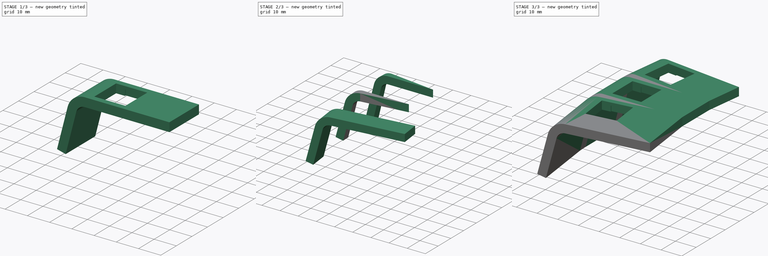
[diagram: build sequence overview — one tinted view per stage of 3, left to right]
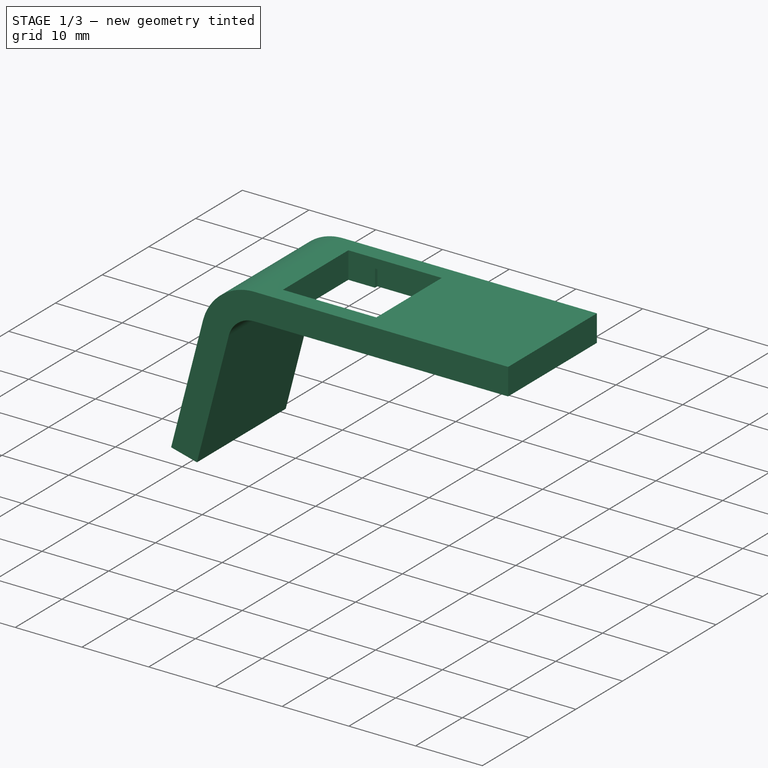
[diagram: stage 1 of 3 — iso view after this stage's code; geometry added in this stage tinted green]
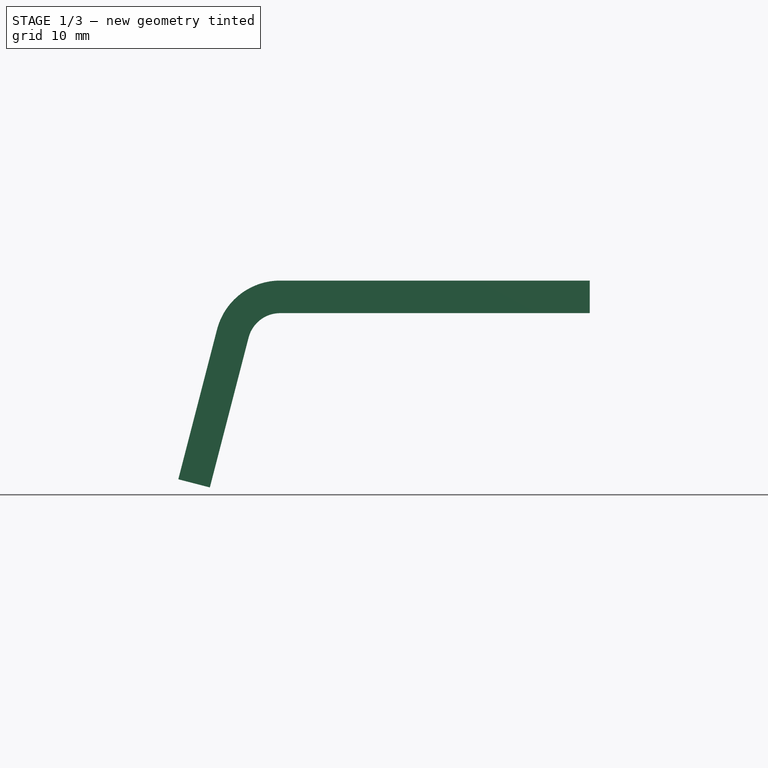
[diagram: stage 1 of 3 — front view after this stage's code; geometry added in this stage tinted green]
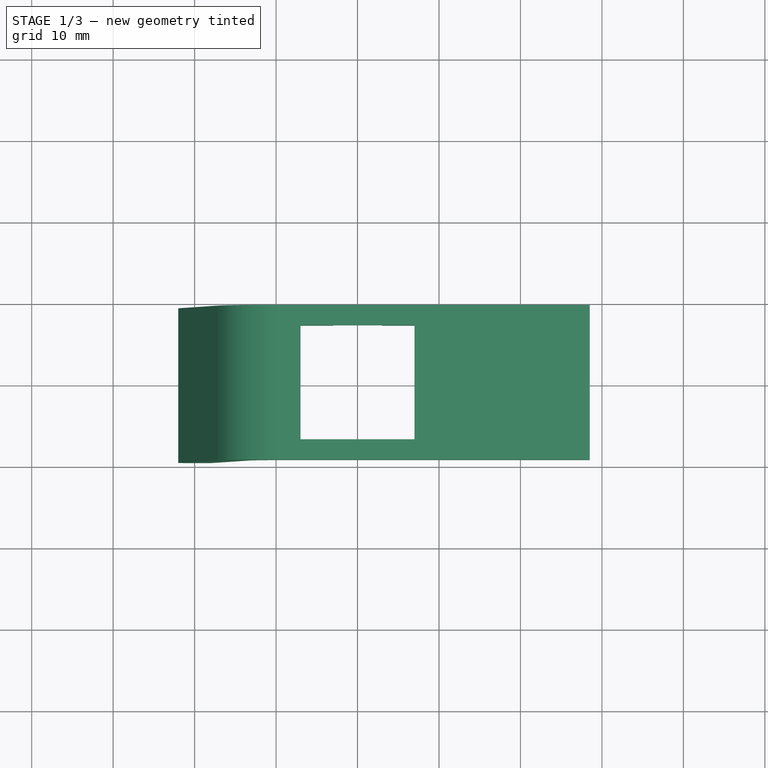
[diagram: stage 1 of 3 — top view after this stage's code; geometry added in this stage tinted green]
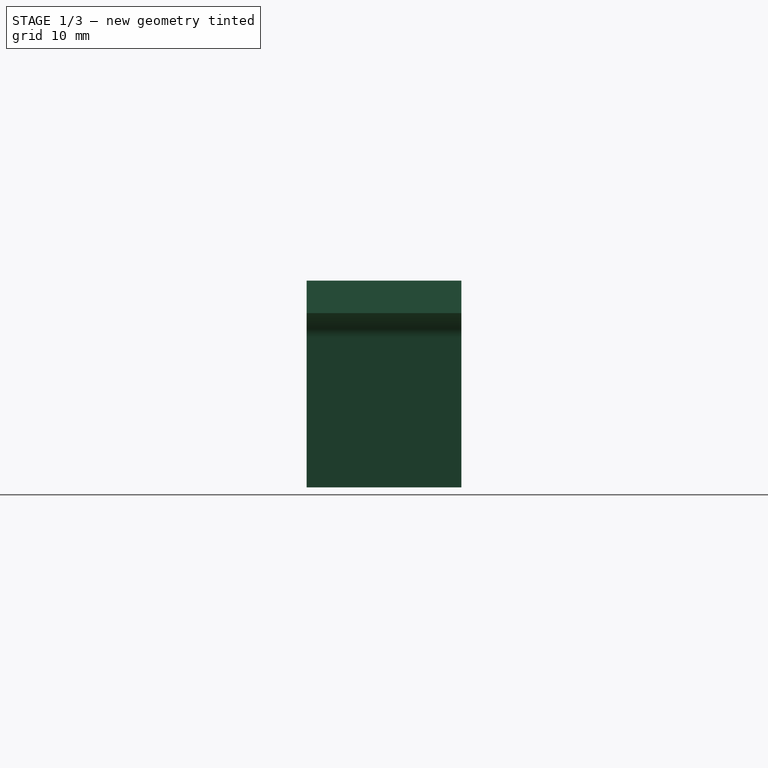
[diagram: stage 1 of 3 — right view after this stage's code; geometry added in this stage tinted green]
FCSTD DOCUMENT  (FreeCAD 0.21R33668 +26 (Git))
Label: KeyRowThumb2
License: All rights reserved
LicenseURL: http://en.wikipedia.org/wiki/All_rights_reserved
objects: Sketcher::SketchObject×5, PartDesign::Body×4, App::Link×4, PartDesign::Pad×2, Part::MultiFuse×2, PartDesign::AdditiveLoft×2, Part::Cut×1, PartDesign::SubShapeBinder×1, Part::Refine×1
note: 22 computed .brp shape members not serialized (recipe doc carries the construction recipe); baked Part::Feature solids carry a one-line shape summary decoded from their .brp
EXTERNAL_REF file=../components/MX-Latch-Subtractor2.FCStd obj=Body001

FEATURE [Sketcher::SketchObject] Sketch
  FullyConstrained = false
  MapMode = 5
  Placement = pos=(0,0,0) rot=(1,0,0;1.5708rad)
  Support = -> [XZ_Plane]
  sketch-geometry (15):
    g0: LineSegment StartX=-9.5 StartY=2 StartZ=0 EndX=9.5 EndY=2 EndZ=0
    g1: LineSegment StartX=9.5 StartY=2 StartZ=0 EndX=9.5 EndY=-2 EndZ=0
    g2: LineSegment StartX=9.5 StartY=-2 StartZ=0 EndX=-9.5 EndY=-2 EndZ=0
    g3: LineSegment StartX=-9.5 StartY=-2 StartZ=0 EndX=-9.5 EndY=2 EndZ=0
    g4: LineSegment StartX=-17.2452 StartY=-3.99696 StartZ=0 EndX=-13.3726 EndY=-4.99848 EndZ=0
    g5: LineSegment StartX=-9.5 StartY=-2 StartZ=0 EndX=-9.5 EndY=-6 EndZ=0
    g6: LineSegment StartX=-17.2452 StartY=-3.99696 StartZ=0 EndX=-22.0024 EndY=-22.3918 EndZ=0
    g7: LineSegment StartX=-22.0024 StartY=-22.3918 StartZ=0 EndX=-18.1298 EndY=-23.3933 EndZ=0
    g8: LineSegment StartX=-18.1298 StartY=-23.3933 StartZ=0 EndX=-13.3726 EndY=-4.99848 EndZ=0
    g9: LineSegment StartX=9.5 StartY=2 StartZ=0 EndX=28.5 EndY=2 EndZ=0
    g10: LineSegment StartX=28.5 StartY=2 StartZ=0 EndX=28.5 EndY=-2 EndZ=0
    g11: LineSegment StartX=28.5 StartY=-2 StartZ=0 EndX=9.5 EndY=-2 EndZ=0
    g12: LineSegment StartX=9.5 StartY=-21 StartZ=0 EndX=9.5 EndY=-2 EndZ=0
    g13: ArcOfCircle CenterX=-9.5 CenterY=-6 CenterZ=0 NormalX=0 NormalY=0 NormalZ=1 AngleXU=0 Radius=4 StartAngle=1.5708 EndAngle=2.88852
    g14: ArcOfCircle CenterX=-9.5 CenterY=-6 CenterZ=0 NormalX=0 NormalY=0 NormalZ=1 AngleXU=0 Radius=8 StartAngle=1.5708 EndAngle=2.88852
  constraints (36):
    c: Coincident(g1,g2)
    c: Coincident(g2,g3)
    c: Coincident(g3,g0)
    c: Horizontal(g0)
    c: Horizontal(g2)
    c: Vertical(g1)
    c: Symmetric(g0,g1,g-1)
    c: DistanceX(g0,g0) = 19
    c: DistanceY(g1,g1) = 4
    c: Distance(g4) = 4
    c: Coincident(g5,g2)
    c: Coincident(g4,g6) = -1.5708
    c: Coincident(g6,g7)
    c: Coincident(g7,g8)
    c: Distance(g5) = 4
    c: Coincident(g10,g9)
    c: Coincident(g11,g10)
    c: Perpendicular(g11,g10)
    c: Perpendicular(g9,g10)
    c: Distance(g10) = 4
    c: Distance(g9) = 19
    c: Coincident(g12,g2)
    c: Vertical(g12)
    c: Distance(g12) = 19
    c: Perpendicular(g7,g8)
    c: Perpendicular(g6,g7)
    c: Distance(g8) = 19
    c: Angle(g8,g2) = 1.82387
    c: Coincident(g0,g9)
    c: Coincident(g11,g2)
    c: Vertical(g1,g0)
    c: Coincident(g14,g13)
    c: Tangent(g13,g8) = 1.5708
    c: Tangent(g14,g6) = -1.5708
    c: Tangent(g14,g0) = 1.5708
    c: Tangent(g13,g2) = -1.5708
FEATURE [PartDesign::Pad] Pad
  Direction = (0,-1,-2e-16)
  Length = 19
  Length2 = 10
  Midplane = true
  Placement = pos=(0,0,0) rot=(1,0,0;1.5708rad)
  Profile = -> Sketch
  ReferenceAxis = -> Sketch [N_Axis]
  Type = 0
FEATURE [PartDesign::Body] Body
  Group = -> [Sketch,Pad]
  Origin = -> Origin
  Tip = -> Pad
FEATURE [App::Link] Link  label="MX-Latch-SubtractorNice"
  LinkPlacement = pos=(0,0,2) rot=(0,0,1;0rad)
  LinkedObject = -> <external ../components/MX-Latch-Subtractor2.FCStd>#Body001
  Placement = pos=(0,0,2) rot=(0,0,1;0rad)
FEATURE [Part::Cut] Cut  label="KeyRowThumbBase"
  Base = -> Body
  Refine = true
  Tool = -> Link
FEATURE [Part::Refine] Fusion002  label="ThumbCluster2Nice"
  Source = -> Fusion001

RESOLVED EXTERNAL PARTS (link-assembly join: the EXTERNAL_REF files above that resolve inside this repo's crawl, each included once):
---- part ../components/MX-Latch-Subtractor2.FCStd = doc fcstd_7b445c9ccc9a ----
FCSTD DOCUMENT  (FreeCAD 0.21R33668 +26 (Git))
Label: MX-Latch-Subtractor2
License: All rights reserved
LicenseURL: http://en.wikipedia.org/wiki/All_rights_reserved
objects: Sketcher::SketchObject×2, PartDesign::Pad×2, App::DocumentObjectGroup×2, PartDesign::Body×1, Part::Refine×1
note: 8 computed .brp shape members not serialized (recipe doc carries the construction recipe); baked Part::Feature solids carry a one-line shape summary decoded from their .brp

FEATURE [Sketcher::SketchObject] Sketch
  FullyConstrained = true
  MapMode = 5
  Support = -> [XY_Plane]
  sketch-geometry (4):
    g0: LineSegment StartX=-7 StartY=7 StartZ=0 EndX=7 EndY=7 EndZ=0
    g1: LineSegment StartX=7 StartY=7 StartZ=0 EndX=7 EndY=-7 EndZ=0
    g2: LineSegment StartX=7 StartY=-7 StartZ=0 EndX=-7 EndY=-7 EndZ=0
    g3: LineSegment StartX=-7 StartY=-7 StartZ=0 EndX=-7 EndY=7 EndZ=0
  constraints (11):
    c: Coincident(g0,g1)
    c: Coincident(g1,g2)
    c: Coincident(g2,g3)
    c: Coincident(g3,g0)
    c: Horizontal(g0)
    c: Horizontal(g2)
    c: Vertical(g1)
    c: Vertical(g3)
    c: Symmetric(g0,g1,g-1)
    c: Equal(g3,g0)
    c: DistanceX(g0,g0) = 14
FEATURE [PartDesign::Pad] Pad
  Direction = (0,0,1)
  Length = 10
  Length2 = 10
  Profile = -> Sketch
  ReferenceAxis = -> Sketch [N_Axis]
  Reversed = true
  Type = 0
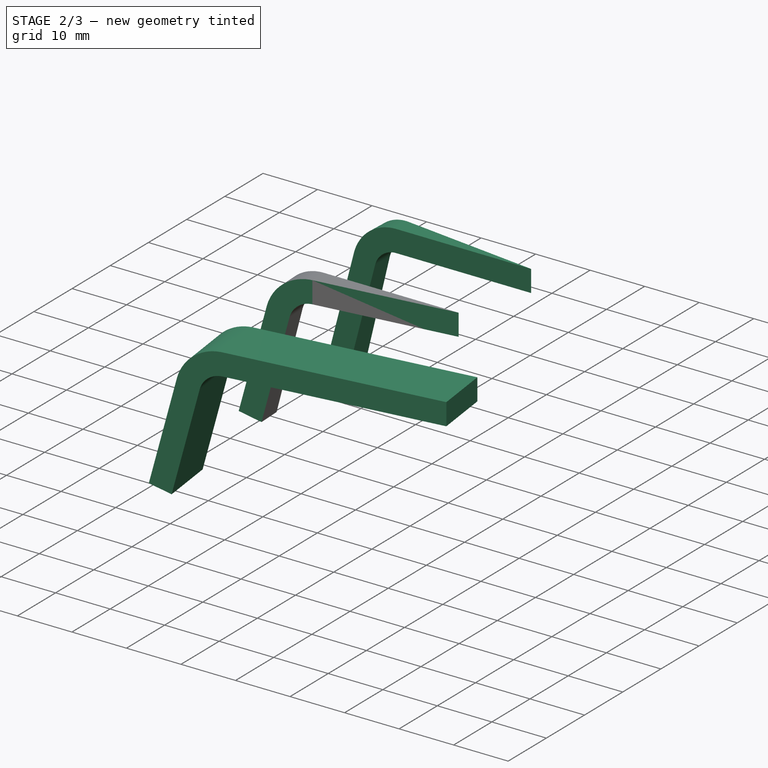
[diagram: stage 2 of 3 — iso view after this stage's code; geometry added in this stage tinted green]
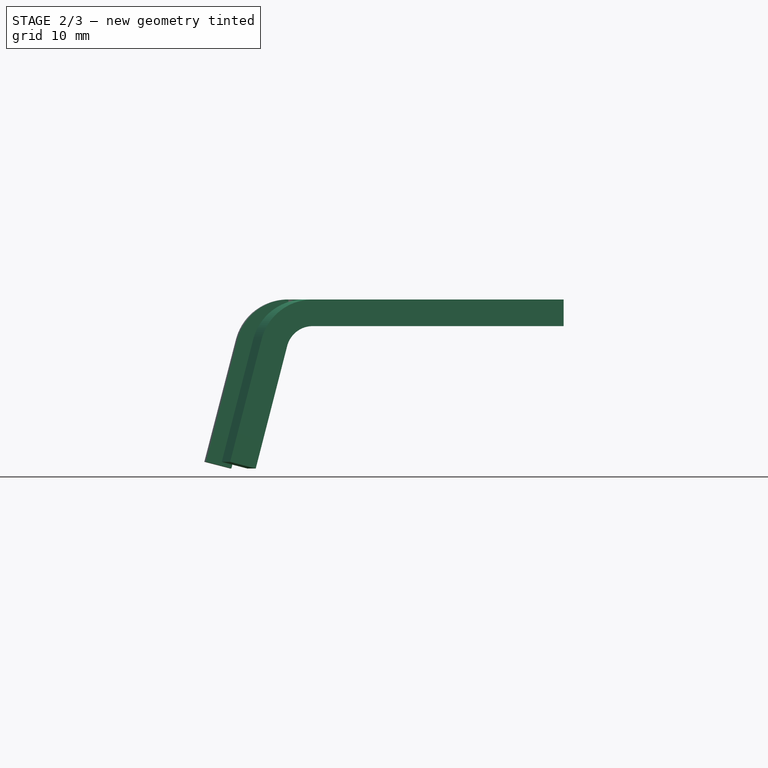
[diagram: stage 2 of 3 — front view after this stage's code; geometry added in this stage tinted green]
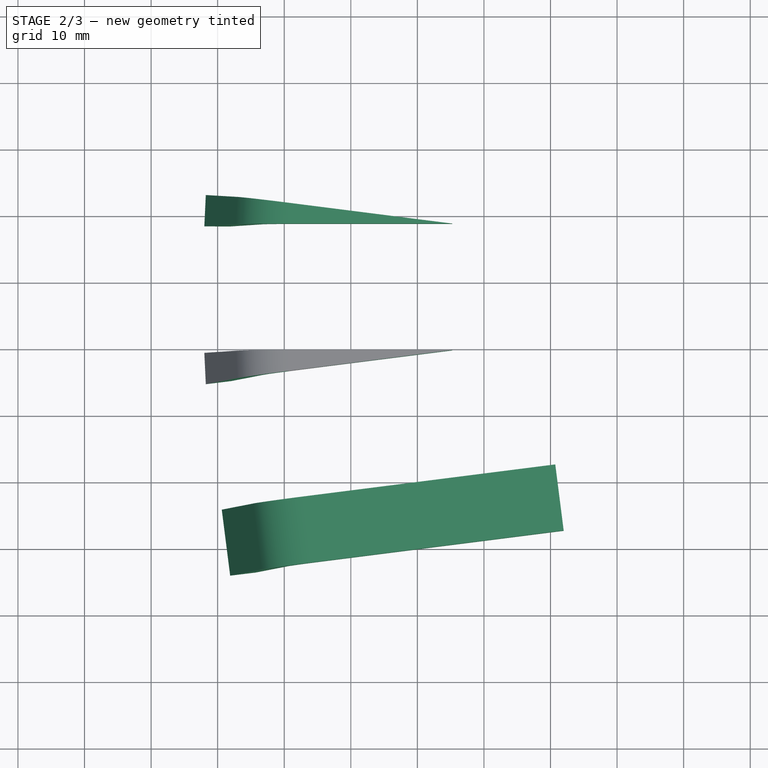
[diagram: stage 2 of 3 — top view after this stage's code; geometry added in this stage tinted green]
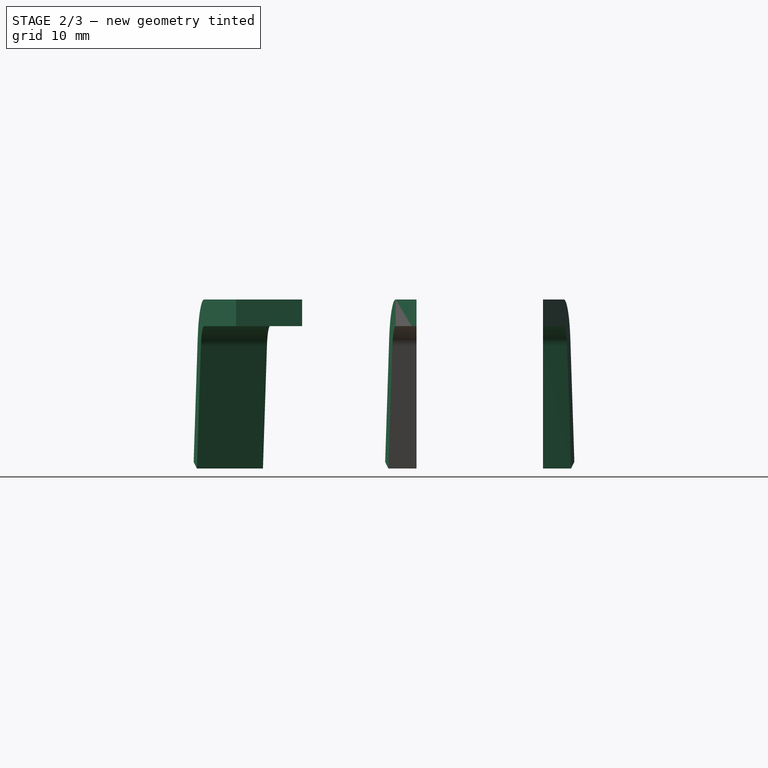
[diagram: stage 2 of 3 — right view after this stage's code; geometry added in this stage tinted green]
FEATURE [Sketcher::SketchObject] Sketch003
  FullyConstrained = false
  Placement = pos=(0,28.5,6e-15) rot=(-1,0,0;1.5708rad)
  sketch-geometry (10):
    g0: ArcOfCircle CenterX=-9.5 CenterY=6 CenterZ=0 NormalX=0 NormalY=1e-16 NormalZ=1 AngleXU=-1.5708 Radius=8 StartAngle=3.39467 EndAngle=4.71239
    g1: LineSegment StartX=-9.5 StartY=-2 StartZ=0 EndX=9.5 EndY=-2 EndZ=0
    g2: LineSegment StartX=9.5 StartY=-2 StartZ=0 EndX=15.2461 EndY=-2 EndZ=0
    g3: LineSegment StartX=15.2461 StartY=-2 StartZ=0 EndX=15.2461 EndY=2 EndZ=0
    g4: LineSegment StartX=15.2461 StartY=2 StartZ=0 EndX=9.5 EndY=2 EndZ=0
    g5: LineSegment StartX=9.5 StartY=2 StartZ=0 EndX=-9.5 EndY=2 EndZ=0
    g6: ArcOfCircle CenterX=-9.5 CenterY=6 CenterZ=0 NormalX=0 NormalY=1e-16 NormalZ=1 AngleXU=-1.5708 Radius=4 StartAngle=3.39467 EndAngle=4.71239
    g7: LineSegment StartX=-18.1298 StartY=23.3933 StartZ=0 EndX=-13.3726 EndY=4.99848 EndZ=0
    g8: LineSegment StartX=-22.0024 StartY=22.3918 StartZ=0 EndX=-18.1298 EndY=23.3933 EndZ=0
    g9: LineSegment StartX=-17.2452 StartY=3.99696 StartZ=0 EndX=-22.0024 EndY=22.3918 EndZ=0
  constraints (15):
    c: Coincident(g0,g1)
    c: Horizontal(g1)
    c: Coincident(g1,g2)
    c: Horizontal(g2)
    c: Coincident(g2,g3)
    c: Vertical(g3)
    c: Coincident(g3,g4)
    c: Horizontal(g4)
    c: Coincident(g4,g5)
    c: Horizontal(g5)
    c: Coincident(g5,g6)
    c: Coincident(g6,g7)
    c: Coincident(g7,g8)
    c: Coincident(g8,g9)
    c: Coincident(g9,g0)
FEATURE [Sketcher::SketchObject] Sketch004
  FullyConstrained = false
  Placement = pos=(3.81073,29.9548,-3.16e-13) rot=(0.992005,-0.126199,0;1.5708rad)
  sketch-geometry (10):
    g0: ArcOfCircle CenterX=-13.9465 CenterY=-4.27414 CenterZ=0 NormalX=0 NormalY=-1e-16 NormalZ=1 AngleXU=-1.69733 Radius=8 StartAngle=1.5708 EndAngle=2.88852
    g1: LineSegment StartX=-21.3769 StartY=-1.30968 StartZ=0 EndX=-28.4175 EndY=-18.9571 EndZ=0
    g2: LineSegment StartX=-28.4175 StartY=-18.9571 StartZ=0 EndX=-24.7023 EndY=-20.4393 EndZ=0
    g3: LineSegment StartX=-24.7023 StartY=-20.4393 StartZ=0 EndX=-17.6617 EndY=-2.79191 EndZ=0
    g4: ArcOfCircle CenterX=-13.9465 CenterY=-4.27414 CenterZ=0 NormalX=0 NormalY=-1e-16 NormalZ=1 AngleXU=-1.69733 Radius=4 StartAngle=1.5708 EndAngle=2.88852
    g5: LineSegment StartX=5.40643 StartY=-2.7039 StartZ=0 EndX=-13.4417 EndY=-0.306123 EndZ=0
    g6: LineSegment StartX=11.183 StartY=-3.43878 StartZ=0 EndX=5.40643 EndY=-2.7039 EndZ=0
    g7: LineSegment StartX=11.6878 StartY=0.529244 StartZ=0 EndX=11.183 EndY=-3.43878 EndZ=0
    g8: LineSegment StartX=5.91123 StartY=1.26412 StartZ=0 EndX=11.6878 EndY=0.529244 EndZ=0
    g9: LineSegment StartX=-12.9369 StartY=3.6619 StartZ=0 EndX=5.91123 EndY=1.26412 EndZ=0
  constraints (10):
    c: Coincident(g0,g1)
    c: Coincident(g1,g2)
    c: Coincident(g2,g3)
    c: Coincident(g3,g4)
    c: Coincident(g4,g5)
    c: Coincident(g5,g6)
    c: Coincident(g6,g7)
    c: Coincident(g7,g8)
    c: Coincident(g8,g9)
    c: Coincident(g9,g0)
FEATURE [PartDesign::AdditiveLoft] AdditiveLoft001
  Closed = false
  Placement = pos=(0,28.5,6e-15) rot=(-1,0,0;1.5708rad)
  Profile = -> Sketch003
  Ruled = false
  Sections = -> [Sketch004]
FEATURE [PartDesign::Body] Body002
  Group = -> [Sketch003,Sketch004,AdditiveLoft001]
  Origin = -> Origin002
  Tip = -> AdditiveLoft001
FEATURE [Sketcher::SketchObject] Sketch005
  FullyConstrained = false
  Placement = pos=(-0.946492,7.44004,2e-15) rot=(-0.992005,-0.126199,0;1.5708rad)
  sketch-geometry (10):
    g0: ArcOfCircle CenterX=-9.18924 CenterY=4.87934 CenterZ=0 NormalX=0 NormalY=1e-16 NormalZ=1 AngleXU=-1.44426 Radius=8 StartAngle=3.39467 EndAngle=4.71239
    g1: LineSegment StartX=-8.17964 StartY=-3.0567 StartZ=0 EndX=10.6685 EndY=-0.65892 EndZ=0
    g2: LineSegment StartX=10.6685 StartY=-0.65892 StartZ=0 EndX=16.445 EndY=0.0759518 EndZ=0
    g3: LineSegment StartX=16.445 StartY=0.0759518 StartZ=0 EndX=15.9402 EndY=4.04397 EndZ=0
    g4: LineSegment StartX=15.9402 StartY=4.04397 StartZ=0 EndX=10.1637 EndY=3.3091 EndZ=0
    g5: LineSegment StartX=10.1637 StartY=3.3091 StartZ=0 EndX=-8.68444 EndY=0.911319 EndZ=0
    g6: ArcOfCircle CenterX=-9.18924 CenterY=4.87934 CenterZ=0 NormalX=0 NormalY=1e-16 NormalZ=1 AngleXU=-1.44426 Radius=4 StartAngle=3.39467 EndAngle=4.71239
    g7: LineSegment StartX=-19.9451 StartY=21.0445 StartZ=0 EndX=-12.9045 EndY=3.39711 EndZ=0
    g8: LineSegment StartX=-23.6603 StartY=19.5623 StartZ=0 EndX=-19.9451 EndY=21.0445 EndZ=0
    g9: LineSegment StartX=-16.6197 StartY=1.91488 StartZ=0 EndX=-23.6603 EndY=19.5623 EndZ=0
  constraints (10):
    c: Coincident(g0,g1)
    c: Coincident(g1,g2)
    c: Coincident(g2,g3)
    c: Coincident(g3,g4)
    c: Coincident(g4,g5)
    c: Coincident(g5,g6)
    c: Coincident(g6,g7)
    c: Coincident(g7,g8)
    c: Coincident(g8,g9)
    c: Coincident(g9,g0)
FEATURE [Sketcher::SketchObject] Sketch006
  FullyConstrained = false
  Placement = pos=(0,9.5,2e-15) rot=(1,0,0;1.5708rad)
  sketch-geometry (10):
    g0: ArcOfCircle CenterX=-9.5 CenterY=-6 CenterZ=0 NormalX=0 NormalY=0 NormalZ=1 AngleXU=0 Radius=8 StartAngle=1.5708 EndAngle=2.88852
    g1: LineSegment StartX=-17.2452 StartY=-3.99696 StartZ=0 EndX=-22.0024 EndY=-22.3918 EndZ=0
    g2: LineSegment StartX=-22.0024 StartY=-22.3918 StartZ=0 EndX=-18.1298 EndY=-23.3933 EndZ=0
    g3: LineSegment StartX=-18.1298 StartY=-23.3933 StartZ=0 EndX=-13.3726 EndY=-4.99848 EndZ=0
    g4: ArcOfCircle CenterX=-9.5 CenterY=-6 CenterZ=0 NormalX=0 NormalY=0 NormalZ=1 AngleXU=0 Radius=4 StartAngle=1.5708 EndAngle=2.88852
    g5: LineSegment StartX=9.5 StartY=-2 StartZ=0 EndX=-9.5 EndY=-2 EndZ=0
    g6: LineSegment StartX=15.2461 StartY=-2 StartZ=0 EndX=9.5 EndY=-2 EndZ=0
    g7: LineSegment StartX=15.2461 StartY=2 StartZ=0 EndX=15.2461 EndY=-2 EndZ=0
    g8: LineSegment StartX=9.5 StartY=2 StartZ=0 EndX=15.2461 EndY=2 EndZ=0
    g9: LineSegment StartX=-9.5 StartY=2 StartZ=0 EndX=9.5 EndY=2 EndZ=0
  constraints (15):
    c: Coincident(g0,g1)
    c: Coincident(g1,g2)
    c: Coincident(g2,g3)
    c: Coincident(g3,g4)
    c: Coincident(g4,g5)
    c: Horizontal(g5)
    c: Coincident(g5,g6)
    c: Horizontal(g6)
    c: Coincident(g6,g7)
    c: Vertical(g7)
    c: Coincident(g7,g8)
    c: Horizontal(g8)
    c: Coincident(g8,g9)
    c: Horizontal(g9)
    c: Coincident(g9,g0)
FEATURE [PartDesign::AdditiveLoft] AdditiveLoft
  Closed = false
  Placement = pos=(-0.946492,7.44004,2e-15) rot=(-0.992005,-0.126199,0;1.5708rad)
  Profile = -> Sketch005
  Ruled = false
  Sections = -> [Sketch006]
FEATURE [Sketcher::SketchObject] Sketch001
  AttachmentOffset = pos=(0,0,-1.4) rot=(0,0,1;0rad)
  ExternalGeometry = -> [Pad]
  FullyConstrained = true
  MapMode = 5
  Placement = pos=(0,0,-1.4) rot=(0,0,1;0rad)
  Support = -> [XY_Plane]
  sketch-geometry (8):
    g0: LineSegment StartX=-3 StartY=7.5 StartZ=0 EndX=3 EndY=7.5 EndZ=0
    g1: LineSegment StartX=3 StartY=7.5 StartZ=0 EndX=3 EndY=7 EndZ=0
    g2: LineSegment StartX=3 StartY=7 StartZ=0 EndX=-3 EndY=7 EndZ=0
    g3: LineSegment StartX=-3 StartY=7 StartZ=0 EndX=-3 EndY=7.5 EndZ=0
    g4: LineSegment StartX=-3 StartY=-7 StartZ=0 EndX=3 EndY=-7 EndZ=0
    g5: LineSegment StartX=3 StartY=-7 StartZ=0 EndX=3 EndY=-7.5 EndZ=0
    g6: LineSegment StartX=3 StartY=-7.5 StartZ=0 EndX=-3 EndY=-7.5 EndZ=0
    g7: LineSegment StartX=-3 StartY=-7.5 StartZ=0 EndX=-3 EndY=-7 EndZ=0
  constraints (23):
    c: Coincident(g0,g1)
    c: Coincident(g1,g2)
    c: Coincident(g2,g3)
    c: Coincident(g3,g0)
    c: Horizontal(g0)
    c: Horizontal(g2)
    c: Vertical(g1)
    c: Vertical(g3)
    c: Coincident(g4,g5)
    c: Coincident(g5,g6)
    c: Coincident(g6,g7)
    c: Coincident(g7,g4)
    c: Horizontal(g4)
    c: Horizontal(g6)
    c: Vertical(g5)
    c: Vertical(g7)
    c: Equal(g3,g7)
    c: Equal(g6,g0)
    c: DistanceY(g1,g1) = 0.5
    c: DistanceX(g0,g0) = 6
    c: Horizontal(g2,g-3)
    c: Symmetric(g2,g4,g-1)
    c: Vertical(g1,g4)
FEATURE [PartDesign::Pad] Pad001
  BaseFeature = -> Pad
  Direction = (0,0,1)
  Length = 10
  Length2 = 10
  Profile = -> Sketch001
  ReferenceAxis = -> Sketch001 [N_Axis]
  Reversed = true
  Type = 1
FEATURE [PartDesign::Body] Body  label="MX-Latch-Subtractor2"
  Group = -> [Sketch,Pad,Sketch001,Pad001]
  Origin = -> Origin
  Tip = -> Pad001
FEATURE [Part::Refine] Body001  label="MX-Latch-Subtractor2N"
  Source = -> Body
FEATURE [App::DocumentObjectGroup] Group  label="Base Part"
  Group = -> [Body]
FEATURE [App::DocumentObjectGroup] Group001  label="Refined Copy"
  Group = -> [Body001]
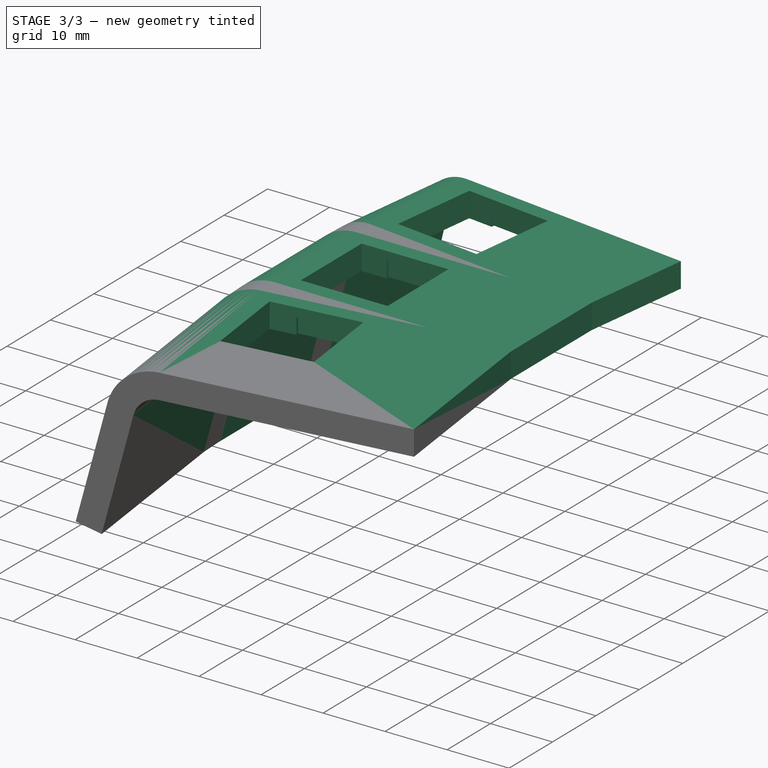
[diagram: stage 3 of 3 — iso view after this stage's code; geometry added in this stage tinted green]
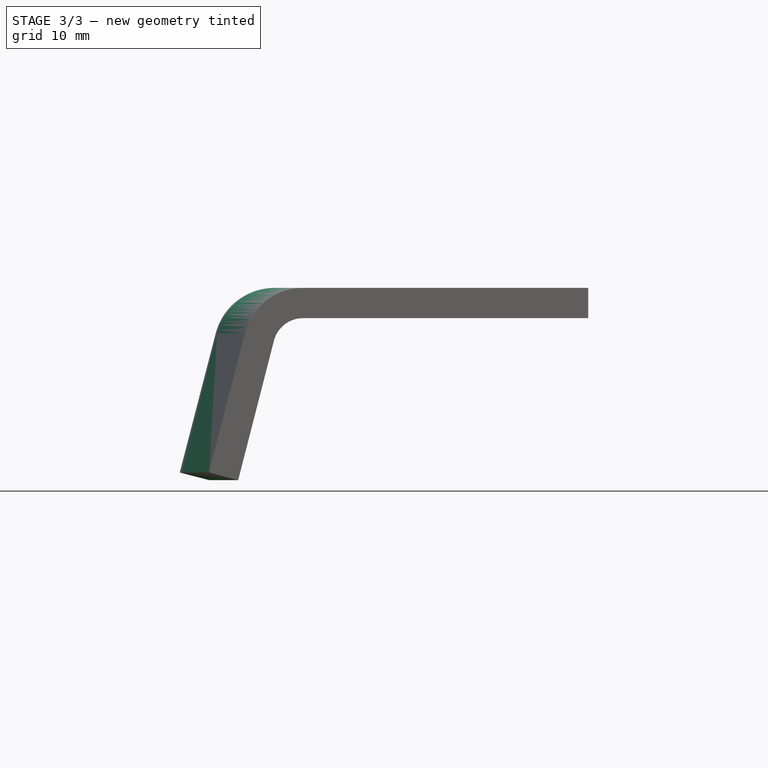
[diagram: stage 3 of 3 — front view after this stage's code; geometry added in this stage tinted green]
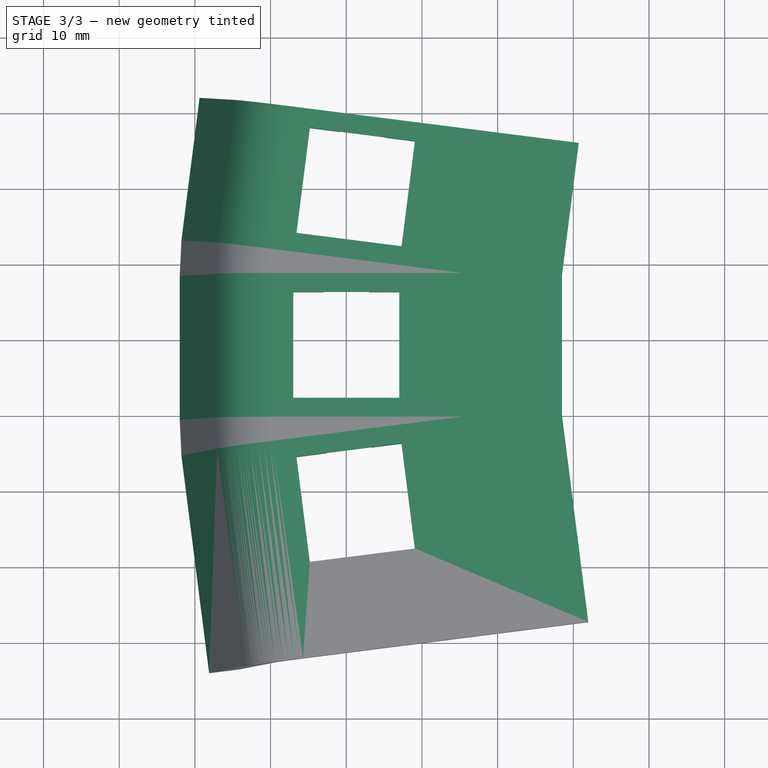
[diagram: stage 3 of 3 — top view after this stage's code; geometry added in this stage tinted green]
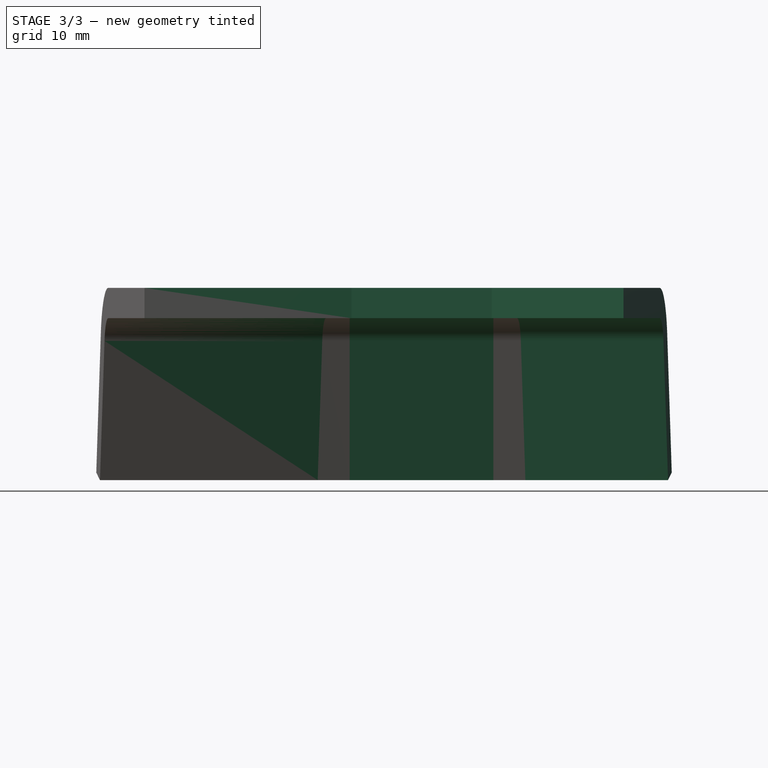
[diagram: stage 3 of 3 — right view after this stage's code; geometry added in this stage tinted green]
FEATURE [App::Link] Link001  label="Cut001"
  LinkPlacement = pos=(1.2444,-1.85781,0) rot=(0,0,1;0.126536rad)
  LinkedObject = -> Cut
  Placement = pos=(1.2444,-1.85781,0) rot=(0,0,1;0.126536rad)
FEATURE [App::Link] Link002  label="Cut002"
  LinkPlacement = pos=(0,19,0) rot=(0,0,1;0rad)
  LinkedObject = -> Link001
  Placement = pos=(0,19,0) rot=(0,0,1;0rad)
FEATURE [App::Link] Link003  label="Cut003"
  LinkPlacement = pos=(1.2444,39.8578,4.36e-14) rot=(0,0,-1;0.126536rad)
  LinkedObject = -> Link002
  Placement = pos=(1.2444,39.8578,4.36e-14) rot=(0,0,-1;0.126536rad)
FEATURE [Part::MultiFuse] Fusion
  Refine = true
  Shapes = -> [Link001,Link002,Link003]
FEATURE [PartDesign::Body] Body001
  Group = -> [Sketch005,Sketch006,AdditiveLoft]
  Origin = -> Origin001
  Tip = -> AdditiveLoft
FEATURE [PartDesign::SubShapeBinder] Binder
  BindCopyOnChange = 0
  BindMode = 0
  ClaimChildren = false
  Context = -> Body003 [Binder.]
  Fuse = false
  MakeFace = true
  OffsetFill = false
  OffsetIntersection = false
  OffsetJoinType = 0
  OffsetOpenResult = false
  PartialLoad = false
  Relative = true
  Support = -> [Link001[Face3]]
  _Version = 2
FEATURE [PartDesign::Pad] Pad001
  Direction = (0.126199,-0.992005,-2e-16)
  Length = 10
  Length2 = 10
  Profile = -> Binder
  Type = 0
FEATURE [PartDesign::Body] Body003
  Group = -> [Binder,Pad001]
  Origin = -> Origin003
  Tip = -> Pad001
FEATURE [Part::MultiFuse] Fusion001
  Refine = true
  Shapes = -> [Fusion,Body002,Body001,Body003]
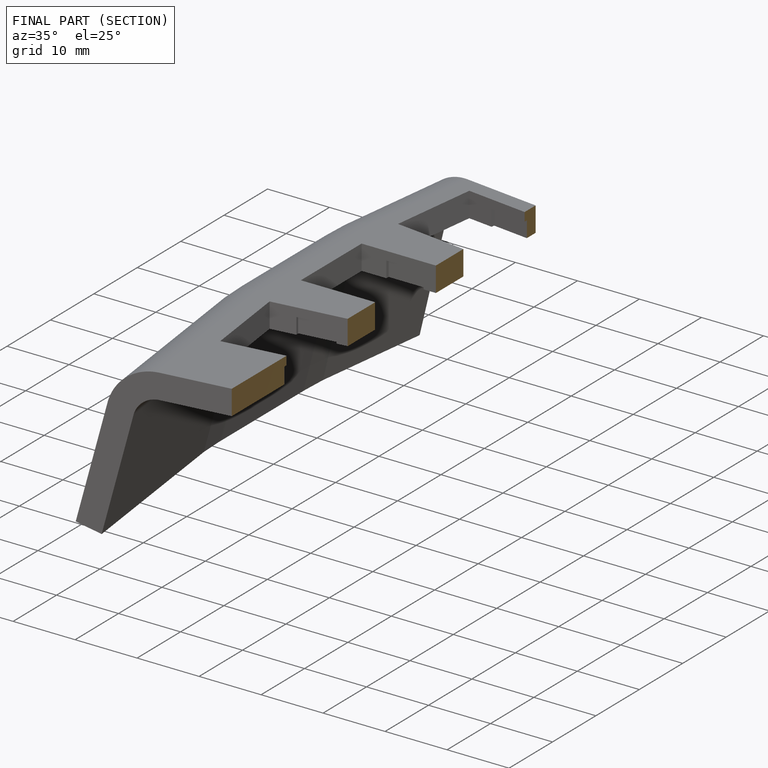
[diagram: finished part — half-section view (interior)]
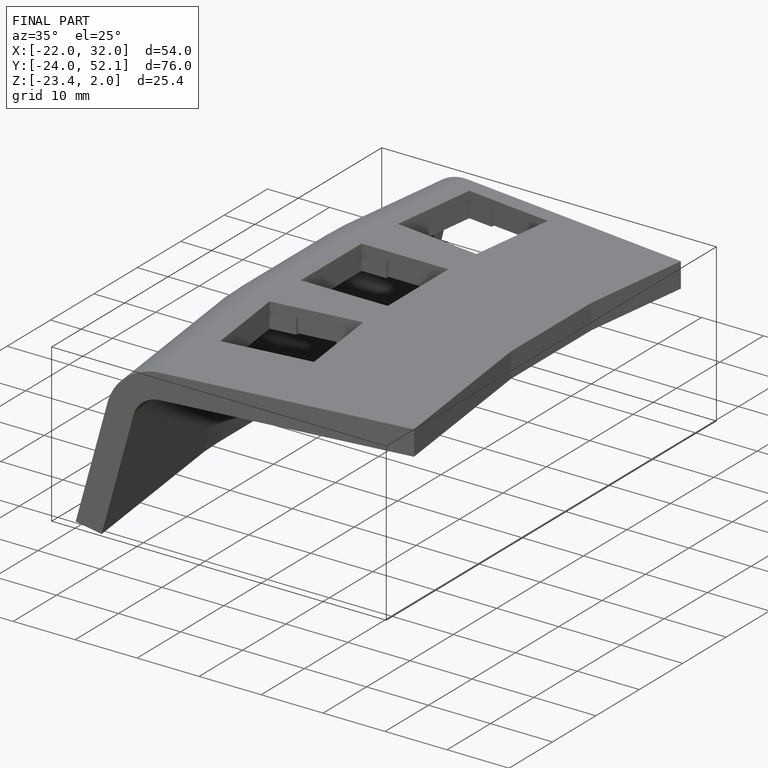
[diagram: finished part — iso view with bounding-box wireframe]
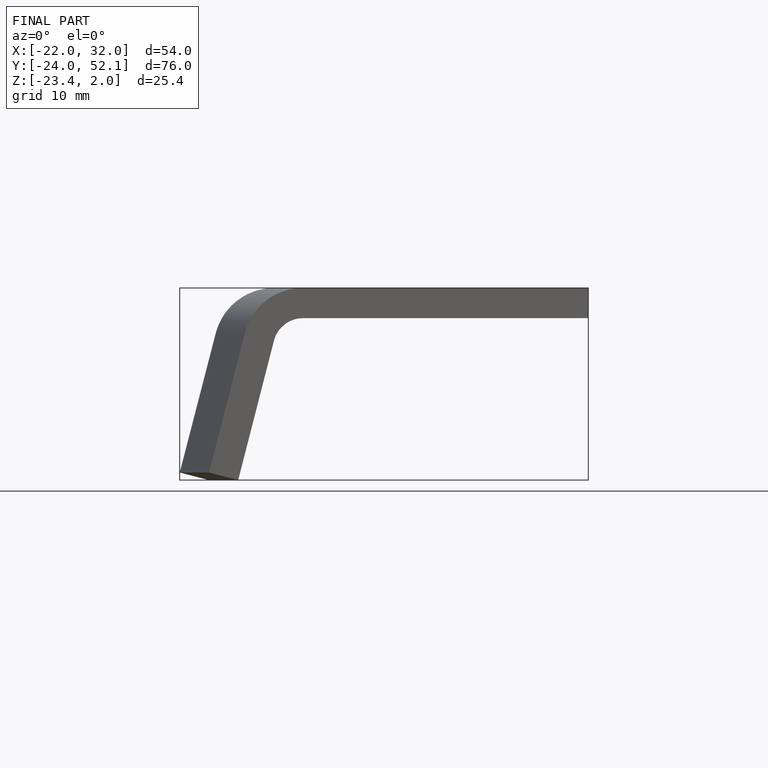
[diagram: finished part — front view with bounding-box wireframe]
